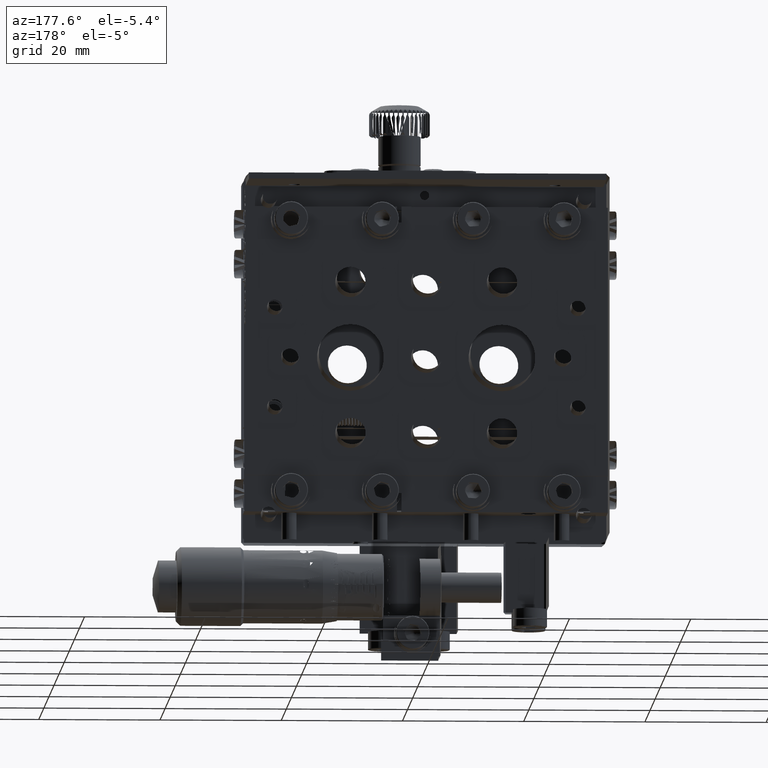
[diagram: clean part render]
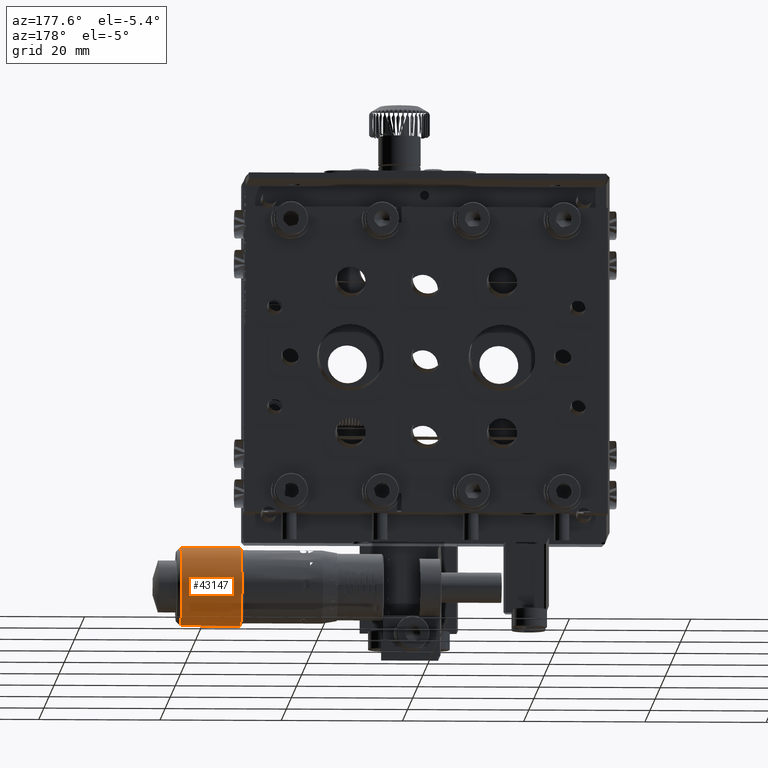
[diagram: same view with one face highlighted and labeled with its STEP entity id]
A machine part, auxiliary view. The second image highlights one B-rep face of the part: STEP entity #43147.
In plain terms, the highlighted cylindrical surface (bore or boss wall) has radius 6.5 mm, axis along (1, 0, 0).
Its self-contained STEP definition (entity closure, byte-faithful):
#1636 = CARTESIAN_POINT ( 'NONE',  ( 40.55000000000000426, 13.00000000000000888, -44.50000100000007563 ) ) ;
#1768 = AXIS2_PLACEMENT_3D ( 'NONE', #54167, #6885, #39456 ) ;
#5672 = CYLINDRICAL_SURFACE ( 'NONE', #80281, 6.500001000000060536 ) ;
#5921 = ORIENTED_EDGE ( 'NONE', *, *, #35970, .F. ) ;
#6885 = DIRECTION ( 'NONE',  ( -1.000000000000000000, -2.668804937110888143E-16, -0.000000000000000000 ) ) ;
#7775 = CIRCLE ( 'NONE', #10603, 6.500001000000060536 ) ;
#8548 = CARTESIAN_POINT ( 'NONE',  ( 40.55000000000000426, 13.00000000000000888, -38.00000000000001421 ) ) ;
#9750 = EDGE_LOOP ( 'NONE', ( #5921 ) ) ;
#10603 = AXIS2_PLACEMENT_3D ( 'NONE', #8548, #61944, #27231 ) ;
#15547 = VERTEX_POINT ( 'NONE', #1636 ) ;
#15639 = ORIENTED_EDGE ( 'NONE', *, *, #84328, .T. ) ;
#20398 = FACE_OUTER_BOUND ( 'NONE', #75005, .T. ) ;
#27231 = DIRECTION ( 'NONE',  ( 0.000000000000000000, 0.000000000000000000, -1.000000000000000000 ) ) ;
#32612 = CARTESIAN_POINT ( 'NONE',  ( 30.64999999998008207, 19.50000099992621472, -38.00000000000001421 ) ) ;
#35970 = EDGE_CURVE ( 'NONE', #78651, #78651, #73854, .T. ) ;
#39090 = DIRECTION ( 'NONE',  ( 1.000000000000000000, 0.000000000000000000, 0.000000000000000000 ) ) ;
#39456 = DIRECTION ( 'NONE',  ( 0.000000000000000000, 1.000000000000000000, 0.000000000000000000 ) ) ;
#43147 = ADVANCED_FACE ( 'NONE', ( #47276, #20398 ), #5672, .T. ) ;
#47276 = FACE_OUTER_BOUND ( 'NONE', #9750, .T. ) ;
#54167 = CARTESIAN_POINT ( 'NONE',  ( 30.64999999998008207, 13.00000000000000888, -38.00000000000001421 ) ) ;
#58619 = DIRECTION ( 'NONE',  ( 0.000000000000000000, 0.000000000000000000, -1.000000000000000000 ) ) ;
#61944 = DIRECTION ( 'NONE',  ( -1.000000000000000000, -0.000000000000000000, -0.000000000000000000 ) ) ;
#72108 = CARTESIAN_POINT ( 'NONE',  ( 45.25000000000000000, 13.00000000000000888, -38.00000000000001421 ) ) ;
#73854 = CIRCLE ( 'NONE', #1768, 6.500000999926206724 ) ;
#75005 = EDGE_LOOP ( 'NONE', ( #15639 ) ) ;
#78651 = VERTEX_POINT ( 'NONE', #32612 ) ;
#80281 = AXIS2_PLACEMENT_3D ( 'NONE', #72108, #39090, #58619 ) ;
#84328 = EDGE_CURVE ( 'NONE', #15547, #15547, #7775, .T. ) ;